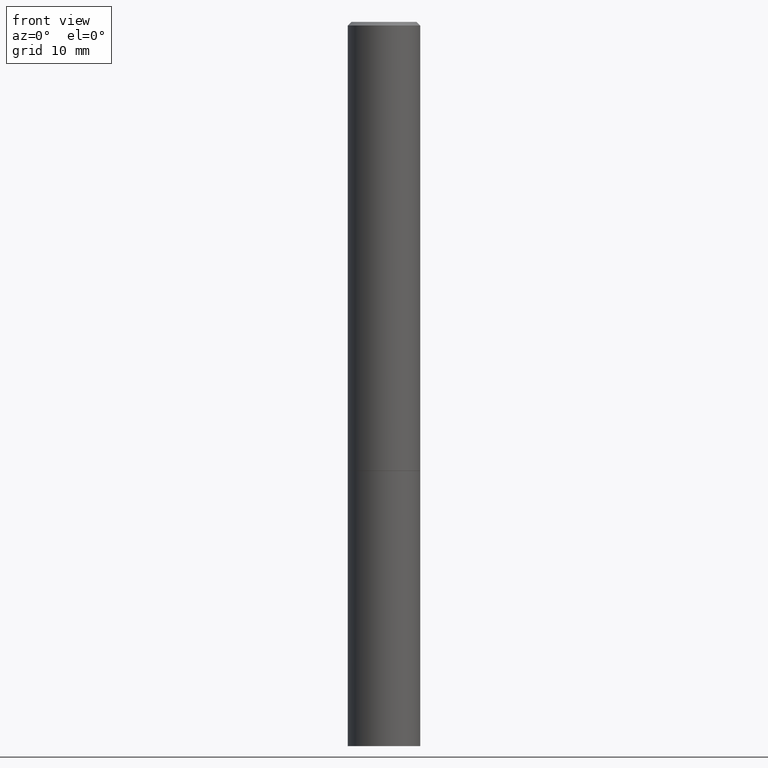
[diagram: clean part render]
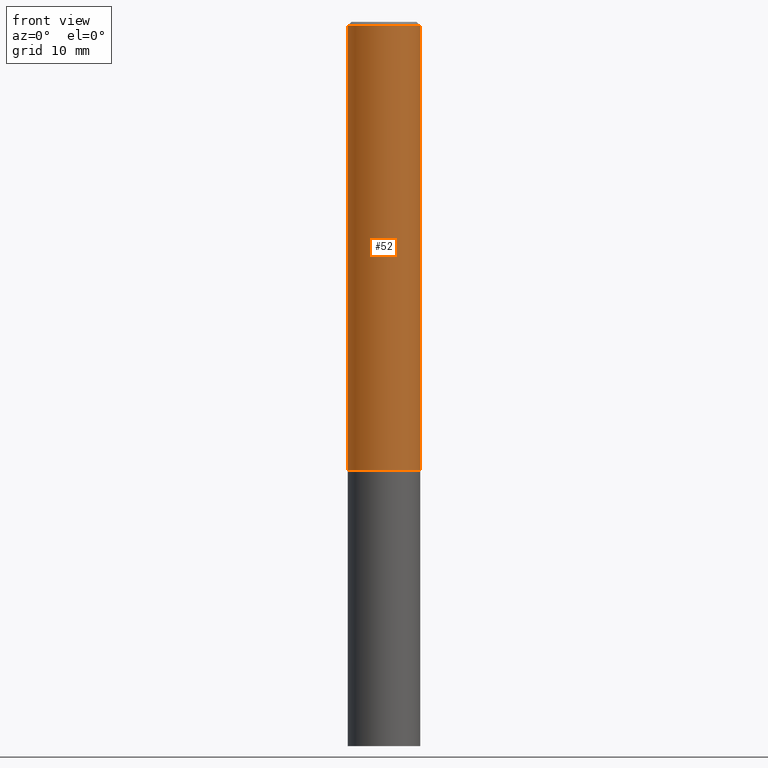
[diagram: same view with one face highlighted and labeled with its STEP entity id]
A machine part, front view. The second image highlights one B-rep face of the part: STEP entity #52.
In plain terms, the highlighted cylindrical surface (edge-blend (fillet) strip) has radius 5 mm, axis along (-0, 0, 1).
Its self-contained STEP definition (entity closure, byte-faithful):
#4 = CARTESIAN_POINT ( 'NONE',  ( 0.1968500000000000250, -9.893461521745931567E-15, -2.439900000000000180 ) ) ;
#16 = DIRECTION ( 'NONE',  ( -2.445468806185136597E-29, 3.491481338843145583E-15, 1.000000000000000000 ) ) ;
#18 = CARTESIAN_POINT ( 'NONE',  ( -0.1968499999999999139, 1.398703375343756604E-15, -9.682923725166778072E-30 ) ) ;
#19 = CARTESIAN_POINT ( 'NONE',  ( -0.1968499999999998307, 1.304766576325677324E-15, -0.02000000000000002123 ) ) ;
#21 = DIRECTION ( 'NONE',  ( 1.000000000000000000, -6.982962677686266711E-15, 4.876176775795935793E-29 ) ) ;
#31 = DIRECTION ( 'NONE',  ( -2.445468806185136597E-29, 3.491481338843145583E-15, 1.000000000000000000 ) ) ;
#49 = LINE ( 'NONE', #18, #243 ) ;
#52 = ADVANCED_FACE ( 'NONE', ( #71 ), #286, .T. ) ;
#54 = CARTESIAN_POINT ( 'NONE',  ( -0.1968500000000000250, -2.895644097366366474E-15, -2.439900000000000180 ) ) ;
#64 = EDGE_LOOP ( 'NONE', ( #225, #260, #348, #354 ) ) ;
#71 = FACE_OUTER_BOUND ( 'NONE', #64, .T. ) ;
#84 = EDGE_CURVE ( 'NONE', #344, #89, #249, .T. ) ;
#88 = AXIS2_PLACEMENT_3D ( 'NONE', #128, #16, #185 ) ;
#89 = VERTEX_POINT ( 'NONE', #157 ) ;
#97 = CARTESIAN_POINT ( 'NONE',  ( 0.000000000000000000, 0.000000000000000000, 0.000000000000000000 ) ) ;
#116 = EDGE_CURVE ( 'NONE', #192, #344, #234, .T. ) ;
#117 = AXIS2_PLACEMENT_3D ( 'NONE', #97, #31, #21 ) ;
#128 = CARTESIAN_POINT ( 'NONE',  ( 4.890937612370278413E-31, -6.982962677686297772E-17, -0.02000000000000002123 ) ) ;
#133 = EDGE_CURVE ( 'NONE', #254, #89, #213, .T. ) ;
#157 = CARTESIAN_POINT ( 'NONE',  ( 0.1968499999999998307, -1.420318657638187938E-15, -0.02000000000000002123 ) ) ;
#181 = VECTOR ( 'NONE', #242, 39.37007874015748143 ) ;
#185 = DIRECTION ( 'NONE',  ( 1.000000000000000000, -6.982962677686266711E-15, 0.000000000000000000 ) ) ;
#192 = VERTEX_POINT ( 'NONE', #54 ) ;
#210 = EDGE_CURVE ( 'NONE', #192, #254, #49, .T. ) ;
#213 = CIRCLE ( 'NONE', #88, 0.1968499999999998307 ) ;
#214 = CARTESIAN_POINT ( 'NONE',  ( 5.966699340211115678E-29, -8.518865318643391536E-15, -2.439900000000000180 ) ) ;
#225 = ORIENTED_EDGE ( 'NONE', *, *, #210, .F. ) ;
#234 = CIRCLE ( 'NONE', #308, 0.1968500000000000250 ) ;
#242 = DIRECTION ( 'NONE',  ( -2.445468806185136877E-29, 3.491481338843145188E-15, 1.000000000000000000 ) ) ;
#243 = VECTOR ( 'NONE', #359, 39.37007874015748143 ) ;
#249 = LINE ( 'NONE', #361, #181 ) ;
#254 = VERTEX_POINT ( 'NONE', #19 ) ;
#260 = ORIENTED_EDGE ( 'NONE', *, *, #116, .T. ) ;
#286 = CYLINDRICAL_SURFACE ( 'NONE', #117, 0.1968499999999999139 ) ;
#308 = AXIS2_PLACEMENT_3D ( 'NONE', #214, #358, #331 ) ;
#331 = DIRECTION ( 'NONE',  ( 1.000000000000000000, -6.982962677686262766E-15, 0.000000000000000000 ) ) ;
#344 = VERTEX_POINT ( 'NONE', #4 ) ;
#348 = ORIENTED_EDGE ( 'NONE', *, *, #84, .T. ) ;
#354 = ORIENTED_EDGE ( 'NONE', *, *, #133, .F. ) ;
#358 = DIRECTION ( 'NONE',  ( -2.445468806185136597E-29, 3.491481338843145583E-15, 1.000000000000000000 ) ) ;
#359 = DIRECTION ( 'NONE',  ( -2.445468806185136877E-29, 3.491481338843145188E-15, 1.000000000000000000 ) ) ;
#361 = CARTESIAN_POINT ( 'NONE',  ( 0.1968499999999999139, -1.374596203102541017E-15, 9.598753983154295253E-30 ) ) ;